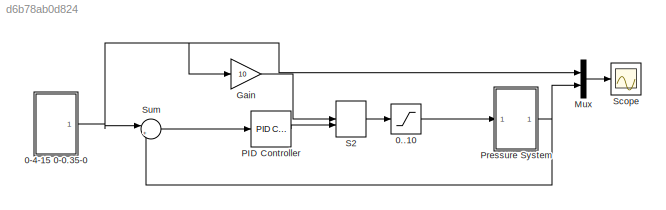
MODEL slx_d6b78ab0d824
KIND model
CONFIG AbsTol = auto
CONFIG EnableMultiTasking = off
CONFIG FixedStep = auto
CONFIG MaxStep = auto
CONFIG MinStep = auto
CONFIG RelTol = 1e-3
CONFIG SampleTimeConstraint = Unconstrained
CONFIG Solver = VariableStepAuto
CONFIG SolverName = ode45
CONFIG StartTime = 0.0
CONFIG StopTime = 20
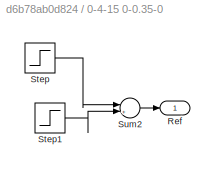
BLOCK [SubSystem] 0-4-15 0-0.35-0
  Ports = [0, 1]
  RequestExecContextInheritance = off
BLOCK [Outport] 0-4-15 0-0.35-0/Ref
BLOCK [Step] 0-4-15 0-0.35-0/Step
  After = o1
  SampleTime = 0
  Time = t1
BLOCK [Step] 0-4-15 0-0.35-0/Step1
  After = -o1
  SampleTime = 0
  Time = t2
BLOCK [Sum] 0-4-15 0-0.35-0/Sum2
  Inputs = |++
  Ports = [2, 1]
BLOCK [Saturate] 0..10
  LowerLimit = 0
  UpperLimit = 10
BLOCK [Gain] Gain
  Gain = 10
BLOCK [Mux] Mux
  DisplayOption = bar
  Inputs = 2
  Ports = [2, 1]
BLOCK [Reference] PID Controller  REF=slpidlib/PID Controller
  Ports = [1, 1]
  SourceBlock = slpidlib/PID Controller
  SourceProductBaseCode = SL
  SourceType = PID 1dof
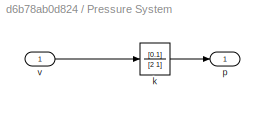
BLOCK [SubSystem] Pressure System
  Permissions = NoReadOrWrite
  Ports = [1, 1]
  RequestExecContextInheritance = off
BLOCK [TransferFcn] Pressure System/k
  Denominator = [2 1]
  Numerator = [0.1]
BLOCK [Outport] Pressure System/p
BLOCK [Inport] Pressure System/v
BLOCK [ManualSwitch] S2
  CurrentSetting = 0
BLOCK [Scope] Scope
  Floating = off
  NumInputPorts = 1
  Ports = [1]
  ScopeSpecificationString = Simulink.scopes.TimeScopeBlockCfg('CurrentConfiguration', extmgr.ConfigurationSet(extmgr.Configuration('Core','General UI',true,'FigureColor',[1 1 1]),extmgr.Configuration('Core','Source UI',true),extmgr.Configuration('Sources','WiredSimulink',true,'DataLoggingLimitDataPoints',true,'DataLoggingSaveFormat','Array','DataLoggingDecimation','1','DataLoggingDecimateData',true),extmgr.Configuration('Vis...<+2647ch>
BLOCK [Sum] Sum
  Inputs = |+-
  Ports = [2, 1]
LINE 0-4-15 0-0.35-0/Step1:1 -> 0-4-15 0-0.35-0/Sum2:2
LINE 0-4-15 0-0.35-0/Step:1 -> 0-4-15 0-0.35-0/Sum2:1
LINE 0-4-15 0-0.35-0/Sum2:1 -> 0-4-15 0-0.35-0/Ref:1
NET 0-4-15 0-0.35-0:1 -> Gain:1, Mux:1, Sum:1
LINE 0..10:1 -> Pressure System:1
LINE Gain:1 -> S2:1
LINE Mux:1 -> Scope:1
LINE PID Controller:1 -> S2:2
LINE Pressure System/k:1 -> Pressure System/p:1
LINE Pressure System/v:1 -> Pressure System/k:1
NET Pressure System:1 -> Mux:2, Sum:2
LINE S2:1 -> 0..10:1
LINE Sum:1 -> PID Controller:1
note: NET lines group one-source signal fan-out (src -> all destinations, sorted); 1:1 wires keep LINE
